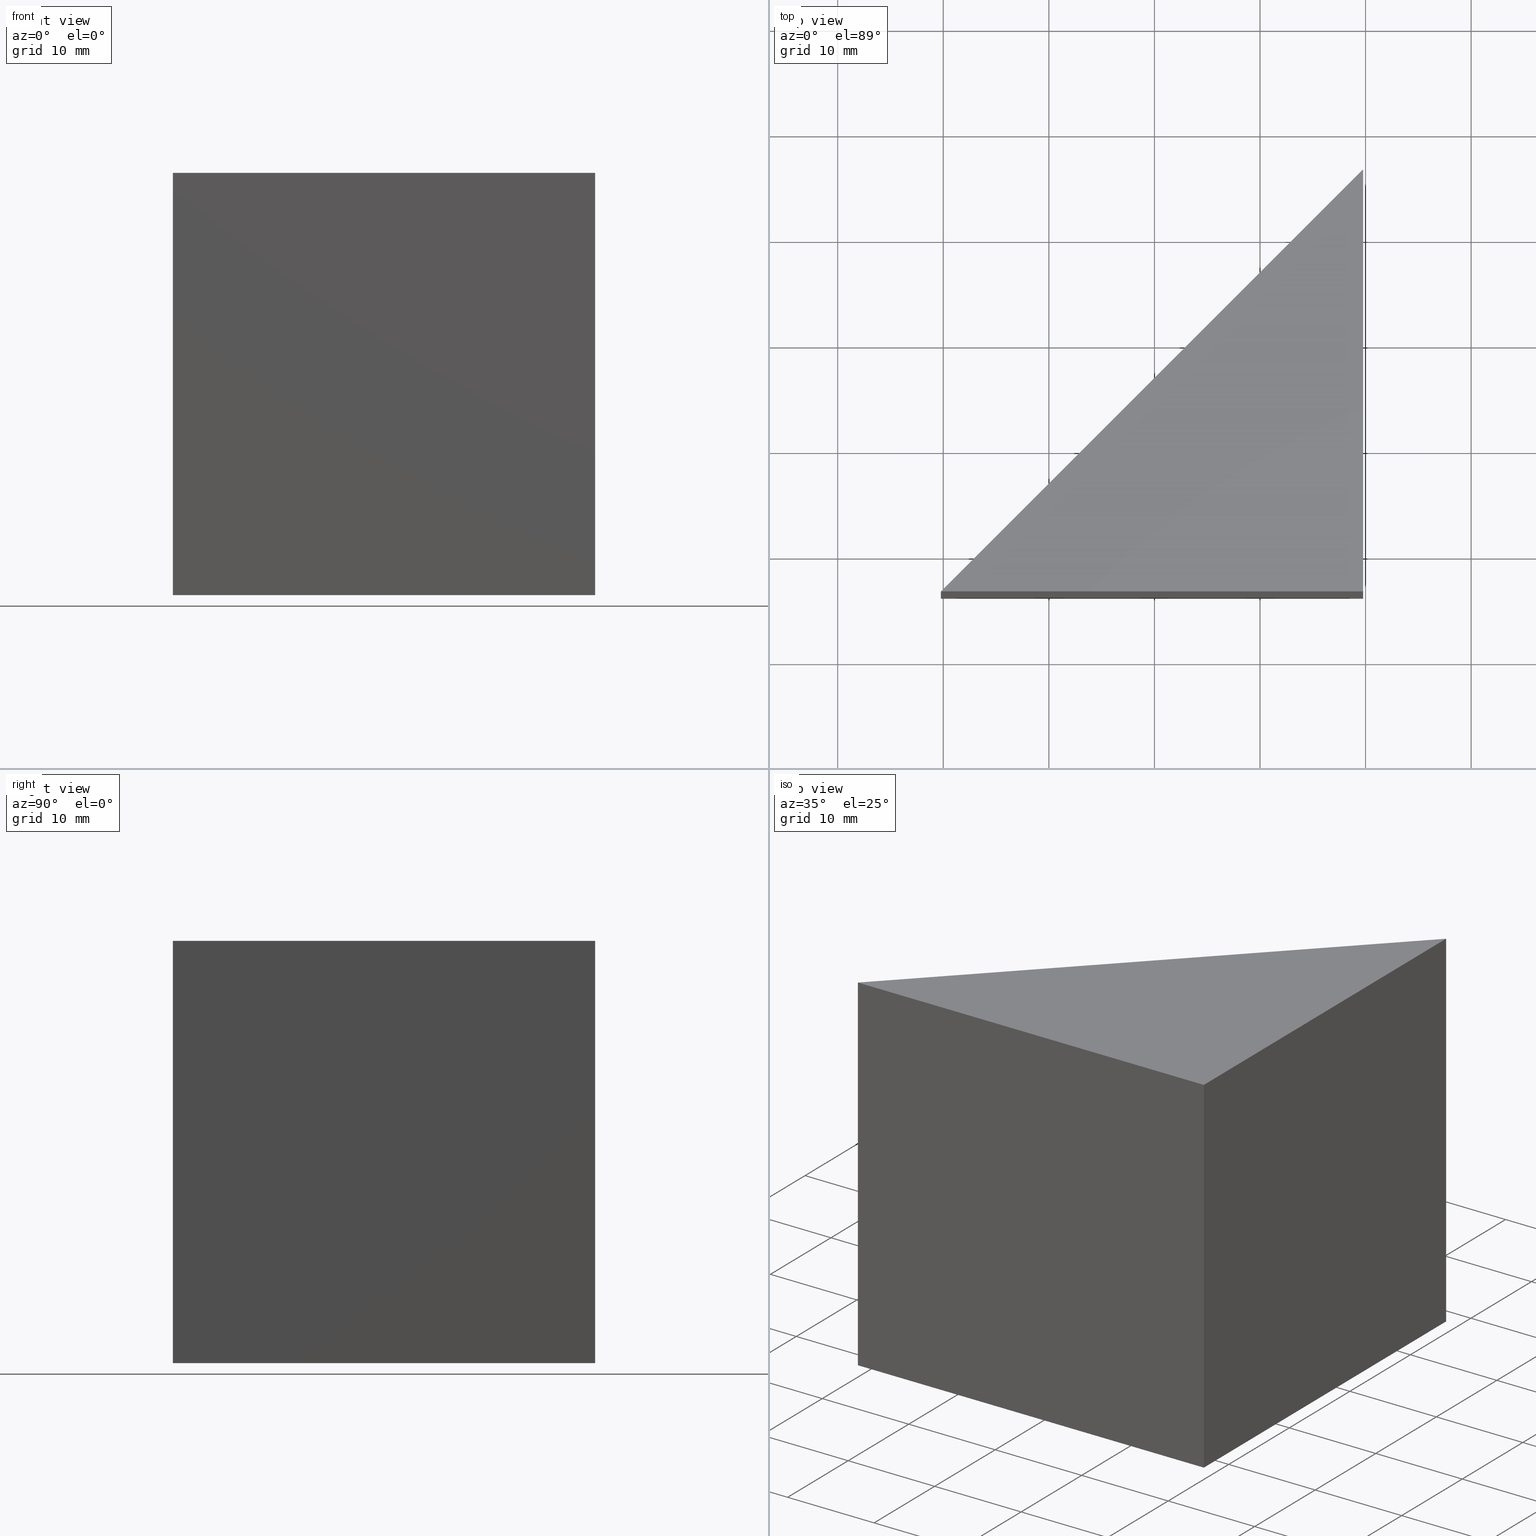
[diagram: canonical four-view strip — front | top / right | iso, engineering-drawing reading convention]
A machine part, canonical four-view strip (front | top / right | iso — engineering-drawing reading convention). The complete STEP part file that produces these views, byte-faithful:
ISO-10303-21;
HEADER;
FILE_DESCRIPTION (( 'STEP AP203' ),
    '1' );
FILE_NAME ('355510.STEP',
    '2019-07-22T06:11:16',
    ( '' ),
    ( '' ),
    'SwSTEP 2.0',
    'SolidWorks 2016',
    '' );
FILE_SCHEMA (( 'CONFIG_CONTROL_DESIGN' ));
ENDSEC;

DATA;
#1 = APPLICATION_PROTOCOL_DEFINITION ( 'international standard', 'config_control_design', 1994, #119 ) ;
#2 = DATE_AND_TIME ( #161, #16 ) ;
#3 = DATE_TIME_ROLE ( 'creation_date' ) ;
#4 = PERSON_AND_ORGANIZATION ( #276, #85 ) ;
#5 = PRODUCT_DEFINITION_FORMATION_WITH_SPECIFIED_SOURCE ( '�κ�', '', #129, .NOT_KNOWN. ) ;
#6 = VECTOR ( 'NONE', #195, 1000.000000000000100 ) ;
#7 = PERSON_AND_ORGANIZATION_ROLE ( 'creator' ) ;
#8 = APPLICATION_CONTEXT ( 'configuration controlled 3d designs of mechanical parts and assemblies' ) ;
#9 = APPROVAL_STATUS ( 'not_yet_approved' ) ;
#10 = COORDINATED_UNIVERSAL_TIME_OFFSET ( 8, 0, .AHEAD. ) ;
#11 = APPROVAL_PERSON_ORGANIZATION ( #136, #143, #271 ) ;
#12 = VECTOR ( 'NONE', #110, 1000.000000000000000 ) ;
#13 = CARTESIAN_POINT ( 'NONE',  ( 99.77125096872458700, 106.2232561922448300, 0.0000000000000000000 ) ) ;
#14 = CC_DESIGN_SECURITY_CLASSIFICATION ( #204, ( #236 ) ) ;
#15 = CARTESIAN_POINT ( 'NONE',  ( 139.7712509687245900, 146.2232561922448300, 0.0000000000000000000 ) ) ;
#16 = LOCAL_TIME ( 14, 11, 16.00000000000000000, #147 ) ;
#17 = DIRECTION ( 'NONE',  ( -0.0000000000000000000, -0.0000000000000000000, -1.000000000000000000 ) ) ;
#18 = ORIENTED_EDGE ( 'NONE', *, *, #263, .F. ) ;
#19 = CARTESIAN_POINT ( 'NONE',  ( 139.7712509687245900, 106.2232561922448300, 0.0000000000000000000 ) ) ;
#20 = APPROVAL_DATE_TIME ( #2, #143 ) ;
#21 = DATE_AND_TIME ( #149, #209 ) ;
#22 = ORIENTED_EDGE ( 'NONE', *, *, #107, .F. ) ;
#23 =( NAMED_UNIT ( * ) SI_UNIT ( $, .STERADIAN. ) SOLID_ANGLE_UNIT ( ) );
#24 = EDGE_LOOP ( 'NONE', ( #34, #22, #238 ) ) ;
#25 = APPROVAL_STATUS ( 'not_yet_approved' ) ;
#26 = CC_DESIGN_PERSON_AND_ORGANIZATION_ASSIGNMENT ( #4, #70, ( #236 ) ) ;
#27 = APPLICATION_CONTEXT ( 'configuration controlled 3d designs of mechanical parts and assemblies' ) ;
#28 = PERSON_AND_ORGANIZATION ( #276, #85 ) ;
#29 = APPROVAL_ROLE ( '' ) ;
#30 = PERSON_AND_ORGANIZATION ( #276, #85 ) ;
#31 = VECTOR ( 'NONE', #93, 1000.000000000000000 ) ;
#32 = APPLICATION_CONTEXT ( 'configuration controlled 3d designs of mechanical parts and assemblies' ) ;
#33 = CC_DESIGN_DATE_AND_TIME_ASSIGNMENT ( #94, #74, ( #281 ) ) ;
#34 = ORIENTED_EDGE ( 'NONE', *, *, #211, .F. ) ;
#35 = PERSON_AND_ORGANIZATION_ROLE ( 'creator' ) ;
#36 = CC_DESIGN_DATE_AND_TIME_ASSIGNMENT ( #185, #3, ( #99 ) ) ;
#37 = VECTOR ( 'NONE', #17, 1000.000000000000000 ) ;
#38 = PRODUCT_DEFINITION_SHAPE ( 'NONE', 'NONE',  #99 ) ;
#39 = EDGE_LOOP ( 'NONE', ( #100, #150, #260 ) ) ;
#40 = PERSON_AND_ORGANIZATION ( #276, #85 ) ;
#41 = LINE ( 'NONE', #220, #266 ) ;
#42 = CARTESIAN_POINT ( 'NONE',  ( 99.77125096872458700, 106.2232561922448300, 40.00000000000000000 ) ) ;
#43 = CARTESIAN_POINT ( 'NONE',  ( 139.7712509687245900, 106.2232561922448300, 40.00000000000000000 ) ) ;
#44 = COORDINATED_UNIVERSAL_TIME_OFFSET ( 8, 0, .AHEAD. ) ;
#45 = EDGE_LOOP ( 'NONE', ( #113, #241, #162, #190 ) ) ;
#46 = EDGE_CURVE ( 'NONE', #194, #269, #41, .T. ) ;
#47 = PLANE ( 'NONE',  #135 ) ;
#48 = DIRECTION ( 'NONE',  ( 1.000000000000000000, 0.0000000000000000000, 0.0000000000000000000 ) ) ;
#49 = PERSON_AND_ORGANIZATION ( #276, #85 ) ;
#50 = CC_DESIGN_APPROVAL ( #192, ( #281 ) ) ;
#51 = APPROVAL_STATUS ( 'not_yet_approved' ) ;
#52 =( GEOMETRIC_REPRESENTATION_CONTEXT ( 3 ) GLOBAL_UNCERTAINTY_ASSIGNED_CONTEXT ( ( #71 ) ) GLOBAL_UNIT_ASSIGNED_CONTEXT ( ( #156, #261, #23 ) ) REPRESENTATION_CONTEXT ( 'NONE', 'WORKASPACE' ) );
#53 = PERSON_AND_ORGANIZATION_ROLE ( 'classification_officer' ) ;
#54 = CC_DESIGN_PERSON_AND_ORGANIZATION_ASSIGNMENT ( #120, #212, ( #204 ) ) ;
#55 = APPROVAL_DATE_TIME ( #102, #192 ) ;
#56 = LOCAL_TIME ( 14, 11, 16.00000000000000000, #44 ) ;
#57 = DATE_AND_TIME ( #237, #68 ) ;
#58 = EDGE_CURVE ( 'NONE', #92, #106, #253, .T. ) ;
#59 = ADVANCED_BREP_SHAPE_REPRESENTATION ( '355510', ( #225, #245 ), #52 ) ;
#60 = CALENDAR_DATE ( 2019, 22, 7 ) ;
#61 = APPROVAL ( #51, 'δָ��' ) ;
#62 = DIRECTION ( 'NONE',  ( 0.0000000000000000000, 0.0000000000000000000, 1.000000000000000000 ) ) ;
#63 = DIRECTION ( 'NONE',  ( -1.000000000000000000, 0.0000000000000000000, 0.0000000000000000000 ) ) ;
#64 = CC_DESIGN_PERSON_AND_ORGANIZATION_ASSIGNMENT ( #118, #101, ( #129 ) ) ;
#65 = LOCAL_TIME ( 14, 11, 16.00000000000000000, #126 ) ;
#66 = APPROVAL_PERSON_ORGANIZATION ( #268, #168, #29 ) ;
#67 = CC_DESIGN_PERSON_AND_ORGANIZATION_ASSIGNMENT ( #40, #7, ( #76 ) ) ;
#68 = LOCAL_TIME ( 14, 11, 16.00000000000000000, #10 ) ;
#69 = EDGE_LOOP ( 'NONE', ( #207, #18, #151, #127 ) ) ;
#70 = PERSON_AND_ORGANIZATION_ROLE ( 'creator' ) ;
#71 = UNCERTAINTY_MEASURE_WITH_UNIT (LENGTH_MEASURE( 1.000000000000000100E-005 ), #156, 'distance_accuracy_value', 'NONE');
#72 = EDGE_CURVE ( 'NONE', #165, #194, #218, .T. ) ;
#73 = PRODUCT_RELATED_PRODUCT_CATEGORY ( 'detail', '', ( #233 ) ) ;
#74 = DATE_TIME_ROLE ( 'classification_date' ) ;
#75 = APPROVAL_ROLE ( '' ) ;
#76 = PRODUCT_DEFINITION ( 'δ֪', '', #5, #259 ) ;
#77 = COORDINATED_UNIVERSAL_TIME_OFFSET ( 8, 0, .AHEAD. ) ;
#78 = FACE_OUTER_BOUND ( 'NONE', #69, .T. ) ;
#79 = CC_DESIGN_PERSON_AND_ORGANIZATION_ASSIGNMENT ( #105, #267, ( #233 ) ) ;
#80 = CARTESIAN_POINT ( 'NONE',  ( 139.7712509687245900, 106.2232561922448300, 0.0000000000000000000 ) ) ;
#81 = DIRECTION ( 'NONE',  ( 0.0000000000000000000, 1.000000000000000000, 0.0000000000000000000 ) ) ;
#82 = CARTESIAN_POINT ( 'NONE',  ( 99.77125096872458700, 106.2232561922448300, 40.00000000000000000 ) ) ;
#83 = CC_DESIGN_PERSON_AND_ORGANIZATION_ASSIGNMENT ( #30, #139, ( #99 ) ) ;
#84 = EDGE_CURVE ( 'NONE', #194, #92, #146, .T. ) ;
#85 = ORGANIZATION ( 'δָ��', 'δָ��', '' ) ;
#86 = DIRECTION ( 'NONE',  ( 0.7071067811865475700, -0.7071067811865475700, 0.0000000000000000000 ) ) ;
#87 = LINE ( 'NONE', #132, #224 ) ;
#88 = CARTESIAN_POINT ( 'NONE',  ( 139.7712509687245900, 146.2232561922448300, 40.00000000000000000 ) ) ;
#89 = CARTESIAN_POINT ( 'NONE',  ( 0.0000000000000000000, 0.0000000000000000000, 0.0000000000000000000 ) ) ;
#90 = DIRECTION ( 'NONE',  ( -1.000000000000000000, 0.0000000000000000000, -0.0000000000000000000 ) ) ;
#91 = COORDINATED_UNIVERSAL_TIME_OFFSET ( 8, 0, .AHEAD. ) ;
#92 = VERTEX_POINT ( 'NONE', #19 ) ;
#93 = DIRECTION ( 'NONE',  ( 1.000000000000000000, -0.0000000000000000000, -0.0000000000000000000 ) ) ;
#94 = DATE_AND_TIME ( #142, #255 ) ;
#95 = APPROVAL_ROLE ( '' ) ;
#96 = APPROVAL_DATE_TIME ( #219, #243 ) ;
#97 = LINE ( 'NONE', #158, #31 ) ;
#98 = CC_DESIGN_DATE_AND_TIME_ASSIGNMENT ( #273, #208, ( #204 ) ) ;
#99 = PRODUCT_DEFINITION ( 'δ֪', '', #236, #172 ) ;
#100 = ORIENTED_EDGE ( 'NONE', *, *, #72, .T. ) ;
#101 = PERSON_AND_ORGANIZATION_ROLE ( 'design_owner' ) ;
#102 = DATE_AND_TIME ( #197, #123 ) ;
#103 = DATE_AND_TIME ( #182, #56 ) ;
#104 = EDGE_LOOP ( 'NONE', ( #198, #153, #246, #186 ) ) ;
#105 = PERSON_AND_ORGANIZATION ( #276, #85 ) ;
#106 = VERTEX_POINT ( 'NONE', #15 ) ;
#107 = EDGE_CURVE ( 'NONE', #106, #210, #280, .T. ) ;
#108 = CALENDAR_DATE ( 2019, 22, 7 ) ;
#109 = CC_DESIGN_APPROVAL ( #243, ( #76 ) ) ;
#110 = DIRECTION ( 'NONE',  ( -0.0000000000000000000, -0.0000000000000000000, -1.000000000000000000 ) ) ;
#111 = EDGE_CURVE ( 'NONE', #269, #165, #87, .T. ) ;
#112 = DIRECTION ( 'NONE',  ( 0.0000000000000000000, 0.0000000000000000000, 1.000000000000000000 ) ) ;
#113 = ORIENTED_EDGE ( 'NONE', *, *, #107, .T. ) ;
#114 = CARTESIAN_POINT ( 'NONE',  ( 139.7712509687245900, 106.2232561922448300, 40.00000000000000000 ) ) ;
#115 = CARTESIAN_POINT ( 'NONE',  ( 139.7712509687245900, 106.2232561922448300, 40.00000000000000000 ) ) ;
#116 = APPLICATION_PROTOCOL_DEFINITION ( 'international standard', 'config_control_design', 1994, #27 ) ;
#117 = CC_DESIGN_APPROVAL ( #143, ( #5 ) ) ;
#118 = PERSON_AND_ORGANIZATION ( #276, #85 ) ;
#119 = APPLICATION_CONTEXT ( 'configuration controlled 3d designs of mechanical parts and assemblies' ) ;
#120 = PERSON_AND_ORGANIZATION ( #276, #85 ) ;
#121 = VECTOR ( 'NONE', #252, 1000.000000000000000 ) ;
#122 = EDGE_CURVE ( 'NONE', #165, #210, #140, .T. ) ;
#123 = LOCAL_TIME ( 14, 11, 16.00000000000000000, #91 ) ;
#124 = LOCAL_TIME ( 14, 11, 16.00000000000000000, #228 ) ;
#125 = CC_DESIGN_APPROVAL ( #275, ( #204 ) ) ;
#126 = COORDINATED_UNIVERSAL_TIME_OFFSET ( 8, 0, .AHEAD. ) ;
#127 = ORIENTED_EDGE ( 'NONE', *, *, #84, .T. ) ;
#128 = AXIS2_PLACEMENT_3D ( 'NONE', #115, #180, #62 ) ;
#129 = PRODUCT ( '355510', '355510', '', ( #141 ) ) ;
#130 = COORDINATED_UNIVERSAL_TIME_OFFSET ( 8, 0, .AHEAD. ) ;
#131 = APPROVAL_DATE_TIME ( #272, #61 ) ;
#132 = CARTESIAN_POINT ( 'NONE',  ( 99.77125096872458700, 106.2232561922448300, 40.00000000000000000 ) ) ;
#133 = CC_DESIGN_DATE_AND_TIME_ASSIGNMENT ( #21, #247, ( #76 ) ) ;
#134 = ADVANCED_FACE ( 'NONE', ( #231 ), #171, .F. ) ;
#135 = AXIS2_PLACEMENT_3D ( 'NONE', #177, #86, #179 ) ;
#136 = PERSON_AND_ORGANIZATION ( #276, #85 ) ;
#137 = LINE ( 'NONE', #88, #12 ) ;
#138 = PLANE ( 'NONE',  #181 ) ;
#139 = PERSON_AND_ORGANIZATION_ROLE ( 'creator' ) ;
#140 = LINE ( 'NONE', #82, #37 ) ;
#141 = MECHANICAL_CONTEXT ( 'NONE', #32, 'mechanical' ) ;
#142 = CALENDAR_DATE ( 2019, 22, 7 ) ;
#143 = APPROVAL ( #189, 'δָ��' ) ;
#144 = APPROVAL_PERSON_ORGANIZATION ( #49, #275, #222 ) ;
#145 = FACE_OUTER_BOUND ( 'NONE', #104, .T. ) ;
#146 = LINE ( 'NONE', #170, #250 ) ;
#147 = COORDINATED_UNIVERSAL_TIME_OFFSET ( 8, 0, .AHEAD. ) ;
#148 = AXIS2_PLACEMENT_3D ( 'NONE', #89, #164, #48 ) ;
#149 = CALENDAR_DATE ( 2019, 22, 7 ) ;
#150 = ORIENTED_EDGE ( 'NONE', *, *, #46, .T. ) ;
#151 = ORIENTED_EDGE ( 'NONE', *, *, #46, .F. ) ;
#152 = AXIS2_PLACEMENT_3D ( 'NONE', #234, #258, #90 ) ;
#153 = ORIENTED_EDGE ( 'NONE', *, *, #84, .F. ) ;
#154 = CC_DESIGN_PERSON_AND_ORGANIZATION_ASSIGNMENT ( #28, #35, ( #5 ) ) ;
#155 = PLANE ( 'NONE',  #163 ) ;
#156 =( LENGTH_UNIT ( ) NAMED_UNIT ( * ) SI_UNIT ( .MILLI., .METRE. ) );
#157 = APPROVAL_PERSON_ORGANIZATION ( #215, #61, #95 ) ;
#158 = CARTESIAN_POINT ( 'NONE',  ( 139.7712509687245900, 106.2232561922448300, 0.0000000000000000000 ) ) ;
#159 = SECURITY_CLASSIFICATION_LEVEL ( 'unclassified' ) ;
#160 = CC_DESIGN_SECURITY_CLASSIFICATION ( #281, ( #5 ) ) ;
#161 = CALENDAR_DATE ( 2019, 22, 7 ) ;
#162 = ORIENTED_EDGE ( 'NONE', *, *, #111, .F. ) ;
#163 = AXIS2_PLACEMENT_3D ( 'NONE', #43, #63, #112 ) ;
#164 = DIRECTION ( 'NONE',  ( 0.0000000000000000000, 0.0000000000000000000, 1.000000000000000000 ) ) ;
#165 = VERTEX_POINT ( 'NONE', #42 ) ;
#166 = LOCAL_TIME ( 14, 11, 16.00000000000000000, #77 ) ;
#167 = CC_DESIGN_PERSON_AND_ORGANIZATION_ASSIGNMENT ( #206, #191, ( #5 ) ) ;
#168 = APPROVAL ( #184, 'δָ��' ) ;
#169 = FACE_OUTER_BOUND ( 'NONE', #45, .T. ) ;
#170 = CARTESIAN_POINT ( 'NONE',  ( 139.7712509687245900, 106.2232561922448300, 40.00000000000000000 ) ) ;
#171 = PLANE ( 'NONE',  #152 ) ;
#172 = DESIGN_CONTEXT ( 'detailed design', #27, 'design' ) ;
#173 = LOCAL_TIME ( 14, 11, 16.00000000000000000, #265 ) ;
#174 = PRODUCT_RELATED_PRODUCT_CATEGORY ( 'detail', '', ( #129 ) ) ;
#175 = ADVANCED_FACE ( 'NONE', ( #257 ), #138, .T. ) ;
#176 = PLANE ( 'NONE',  #128 ) ;
#177 = CARTESIAN_POINT ( 'NONE',  ( 99.77125096872458700, 106.2232561922448300, 40.00000000000000000 ) ) ;
#178 = CALENDAR_DATE ( 2019, 22, 7 ) ;
#179 = DIRECTION ( 'NONE',  ( 0.7071067811865474600, 0.7071067811865474600, 0.0000000000000000000 ) ) ;
#180 = DIRECTION ( 'NONE',  ( 0.0000000000000000000, 1.000000000000000000, -0.0000000000000000000 ) ) ;
#181 = AXIS2_PLACEMENT_3D ( 'NONE', #205, #240, #201 ) ;
#182 = CALENDAR_DATE ( 2019, 22, 7 ) ;
#183 = CC_DESIGN_PERSON_AND_ORGANIZATION_ASSIGNMENT ( #214, #53, ( #281 ) ) ;
#184 = APPROVAL_STATUS ( 'not_yet_approved' ) ;
#185 = DATE_AND_TIME ( #60, #124 ) ;
#186 = ORIENTED_EDGE ( 'NONE', *, *, #122, .T. ) ;
#187 = CC_DESIGN_APPROVAL ( #168, ( #99 ) ) ;
#188 = APPROVAL_ROLE ( '' ) ;
#189 = APPROVAL_STATUS ( 'not_yet_approved' ) ;
#190 = ORIENTED_EDGE ( 'NONE', *, *, #263, .T. ) ;
#191 = PERSON_AND_ORGANIZATION_ROLE ( 'design_supplier' ) ;
#192 = APPROVAL ( #248, 'δָ��' ) ;
#193 = PERSON_AND_ORGANIZATION ( #276, #85 ) ;
#194 = VERTEX_POINT ( 'NONE', #114 ) ;
#195 = DIRECTION ( 'NONE',  ( -0.7071067811865474600, -0.7071067811865474600, -0.0000000000000000000 ) ) ;
#196 = ADVANCED_FACE ( 'NONE', ( #145 ), #176, .F. ) ;
#197 = CALENDAR_DATE ( 2019, 22, 7 ) ;
#198 = ORIENTED_EDGE ( 'NONE', *, *, #211, .T. ) ;
#199 = DIRECTION ( 'NONE',  ( 1.000000000000000000, -0.0000000000000000000, -0.0000000000000000000 ) ) ;
#200 = ADVANCED_FACE ( 'NONE', ( #169 ), #47, .F. ) ;
#201 = DIRECTION ( 'NONE',  ( -1.000000000000000000, 0.0000000000000000000, -0.0000000000000000000 ) ) ;
#202 = SHAPE_DEFINITION_REPRESENTATION ( #270, #59 ) ;
#203 = CARTESIAN_POINT ( 'NONE',  ( 99.77125096872458700, 106.2232561922448300, 0.0000000000000000000 ) ) ;
#204 = SECURITY_CLASSIFICATION ( '', '', #159 ) ;
#205 = CARTESIAN_POINT ( 'NONE',  ( 0.0000000000000000000, 0.0000000000000000000, 0.0000000000000000000 ) ) ;
#206 = PERSON_AND_ORGANIZATION ( #276, #85 ) ;
#207 = ORIENTED_EDGE ( 'NONE', *, *, #58, .T. ) ;
#208 = DATE_TIME_ROLE ( 'classification_date' ) ;
#209 = LOCAL_TIME ( 14, 11, 16.00000000000000000, #256 ) ;
#210 = VERTEX_POINT ( 'NONE', #203 ) ;
#211 = EDGE_CURVE ( 'NONE', #210, #92, #97, .T. ) ;
#212 = PERSON_AND_ORGANIZATION_ROLE ( 'classification_officer' ) ;
#213 = MECHANICAL_CONTEXT ( 'NONE', #119, 'mechanical' ) ;
#214 = PERSON_AND_ORGANIZATION ( #276, #85 ) ;
#215 = PERSON_AND_ORGANIZATION ( #276, #85 ) ;
#216 = VECTOR ( 'NONE', #199, 1000.000000000000000 ) ;
#217 = APPROVAL_DATE_TIME ( #103, #168 ) ;
#218 = LINE ( 'NONE', #278, #216 ) ;
#219 = DATE_AND_TIME ( #108, #166 ) ;
#220 = CARTESIAN_POINT ( 'NONE',  ( 139.7712509687245900, 106.2232561922448300, 40.00000000000000000 ) ) ;
#221 = CLOSED_SHELL ( 'NONE', ( #196, #232, #200, #134, #175 ) ) ;
#222 = APPROVAL_ROLE ( '' ) ;
#223 = APPROVAL_PERSON_ORGANIZATION ( #193, #243, #75 ) ;
#224 = VECTOR ( 'NONE', #274, 1000.000000000000100 ) ;
#225 = MANIFOLD_SOLID_BREP ( '͹̨-����1', #221 ) ;
#226 = APPLICATION_PROTOCOL_DEFINITION ( 'international standard', 'config_control_design', 1994, #8 ) ;
#227 = PERSON_AND_ORGANIZATION ( #276, #85 ) ;
#228 = COORDINATED_UNIVERSAL_TIME_OFFSET ( 8, 0, .AHEAD. ) ;
#229 = SECURITY_CLASSIFICATION_LEVEL ( 'unclassified' ) ;
#230 = CALENDAR_DATE ( 2019, 22, 7 ) ;
#231 = FACE_OUTER_BOUND ( 'NONE', #39, .T. ) ;
#232 = ADVANCED_FACE ( 'NONE', ( #78 ), #155, .F. ) ;
#233 = PRODUCT ( '355510', '355510', '', ( #213 ) ) ;
#234 = CARTESIAN_POINT ( 'NONE',  ( 0.0000000000000000000, 0.0000000000000000000, 40.00000000000000000 ) ) ;
#235 = DIRECTION ( 'NONE',  ( -0.0000000000000000000, -0.0000000000000000000, -1.000000000000000000 ) ) ;
#236 = PRODUCT_DEFINITION_FORMATION_WITH_SPECIFIED_SOURCE ( '�κ�', '', #233, .NOT_KNOWN. ) ;
#237 = CALENDAR_DATE ( 2019, 22, 7 ) ;
#238 = ORIENTED_EDGE ( 'NONE', *, *, #58, .F. ) ;
#239 = DIRECTION ( 'NONE',  ( 0.0000000000000000000, 0.0000000000000000000, 1.000000000000000000 ) ) ;
#240 = DIRECTION ( 'NONE',  ( 0.0000000000000000000, 0.0000000000000000000, -1.000000000000000000 ) ) ;
#241 = ORIENTED_EDGE ( 'NONE', *, *, #122, .F. ) ;
#242 = DIRECTION ( 'NONE',  ( 1.000000000000000000, 0.0000000000000000000, 0.0000000000000000000 ) ) ;
#243 = APPROVAL ( #9, 'δָ��' ) ;
#244 = PERSON_AND_ORGANIZATION_ROLE ( 'design_supplier' ) ;
#245 = AXIS2_PLACEMENT_3D ( 'NONE', #279, #239, #242 ) ;
#246 = ORIENTED_EDGE ( 'NONE', *, *, #72, .F. ) ;
#247 = DATE_TIME_ROLE ( 'creation_date' ) ;
#248 = APPROVAL_STATUS ( 'not_yet_approved' ) ;
#249 = PERSON_AND_ORGANIZATION ( #276, #85 ) ;
#250 = VECTOR ( 'NONE', #235, 1000.000000000000000 ) ;
#251 = CC_DESIGN_PERSON_AND_ORGANIZATION_ASSIGNMENT ( #249, #244, ( #236 ) ) ;
#252 = DIRECTION ( 'NONE',  ( 0.0000000000000000000, 1.000000000000000000, 0.0000000000000000000 ) ) ;
#253 = LINE ( 'NONE', #80, #121 ) ;
#254 = CC_DESIGN_APPROVAL ( #61, ( #236 ) ) ;
#255 = LOCAL_TIME ( 14, 11, 16.00000000000000000, #130 ) ;
#256 = COORDINATED_UNIVERSAL_TIME_OFFSET ( 8, 0, .AHEAD. ) ;
#257 = FACE_OUTER_BOUND ( 'NONE', #24, .T. ) ;
#258 = DIRECTION ( 'NONE',  ( 0.0000000000000000000, 0.0000000000000000000, -1.000000000000000000 ) ) ;
#259 = DESIGN_CONTEXT ( 'detailed design', #8, 'design' ) ;
#260 = ORIENTED_EDGE ( 'NONE', *, *, #111, .T. ) ;
#261 =( NAMED_UNIT ( * ) PLANE_ANGLE_UNIT ( ) SI_UNIT ( $, .RADIAN. ) );
#262 = APPLICATION_PROTOCOL_DEFINITION ( 'international standard', 'config_control_design', 1994, #32 ) ;
#263 = EDGE_CURVE ( 'NONE', #269, #106, #137, .T. ) ;
#264 = APPROVAL_PERSON_ORGANIZATION ( #227, #192, #188 ) ;
#265 = COORDINATED_UNIVERSAL_TIME_OFFSET ( 8, 0, .AHEAD. ) ;
#266 = VECTOR ( 'NONE', #81, 1000.000000000000000 ) ;
#267 = PERSON_AND_ORGANIZATION_ROLE ( 'design_owner' ) ;
#268 = PERSON_AND_ORGANIZATION ( #276, #85 ) ;
#269 = VERTEX_POINT ( 'NONE', #282 ) ;
#270 = PRODUCT_DEFINITION_SHAPE ( 'NONE', 'NONE',  #76 ) ;
#271 = APPROVAL_ROLE ( '' ) ;
#272 = DATE_AND_TIME ( #230, #65 ) ;
#273 = DATE_AND_TIME ( #178, #173 ) ;
#274 = DIRECTION ( 'NONE',  ( -0.7071067811865474600, -0.7071067811865474600, -0.0000000000000000000 ) ) ;
#275 = APPROVAL ( #25, 'δָ��' ) ;
#276 = PERSON ( 'δָ��', 'δָ��', 'δָ��', ('δָ��'), ('δָ��'), ('δָ��') ) ;
#277 = APPROVAL_DATE_TIME ( #57, #275 ) ;
#278 = CARTESIAN_POINT ( 'NONE',  ( 139.7712509687245900, 106.2232561922448300, 40.00000000000000000 ) ) ;
#279 = CARTESIAN_POINT ( 'NONE',  ( 0.0000000000000000000, 0.0000000000000000000, 0.0000000000000000000 ) ) ;
#280 = LINE ( 'NONE', #13, #6 ) ;
#281 = SECURITY_CLASSIFICATION ( '', '', #229 ) ;
#282 = CARTESIAN_POINT ( 'NONE',  ( 139.7712509687245900, 146.2232561922448300, 40.00000000000000000 ) ) ;
ENDSEC;
END-ISO-10303-21;
